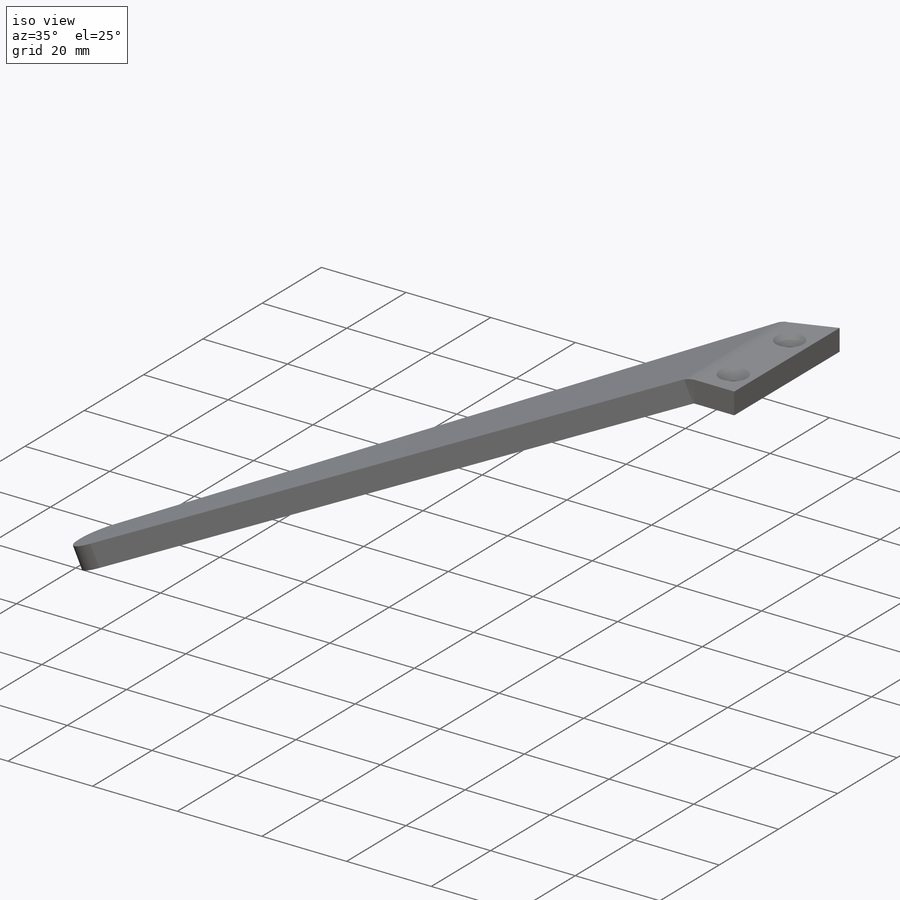
[diagram: iso view]
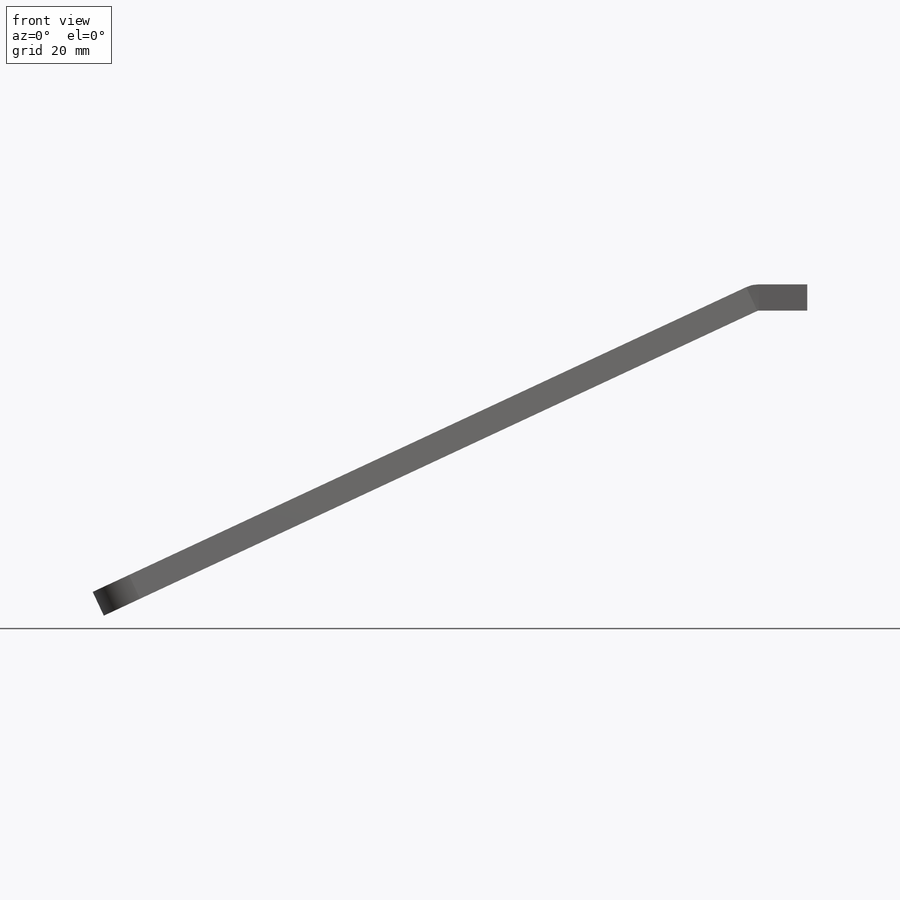
[diagram: front view]
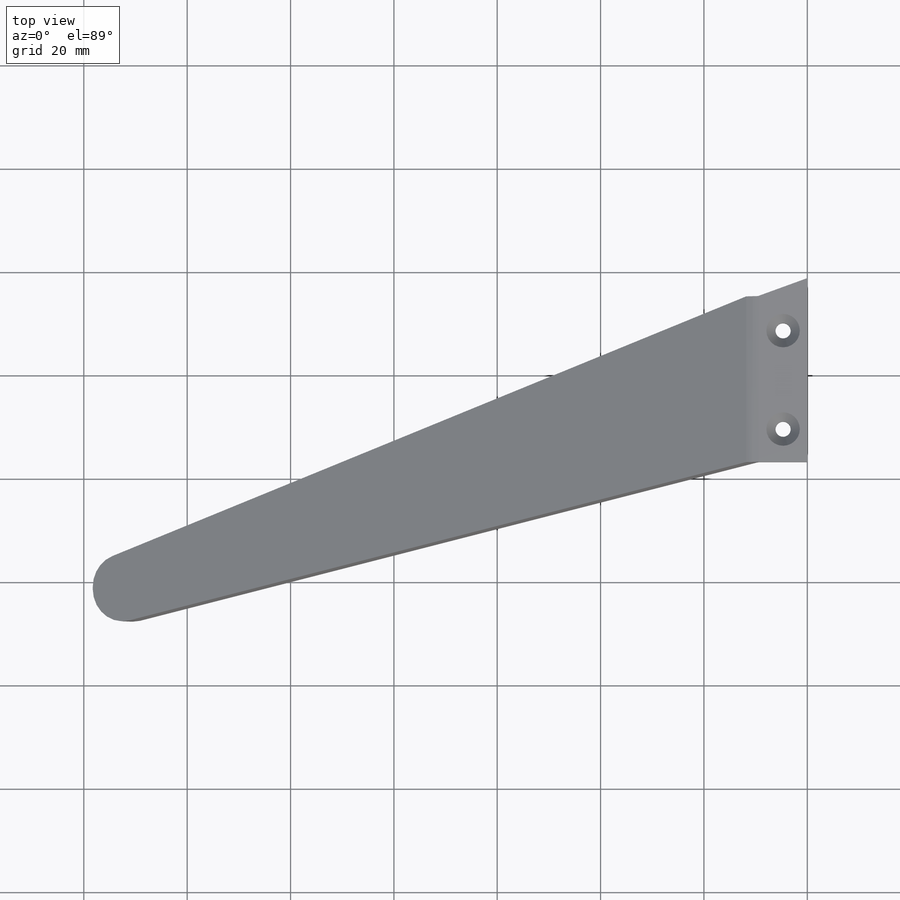
[diagram: top view]
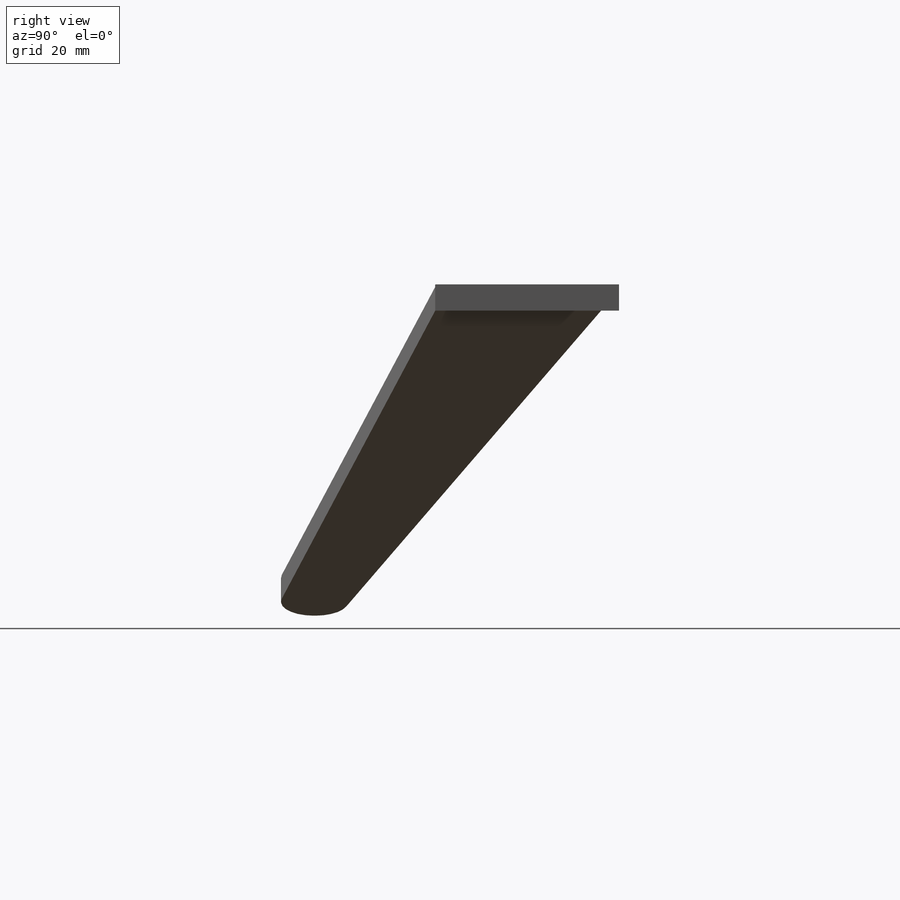
[diagram: right view]
SOLIDWORKS PART (.sldprt)
format: sldprt  version: not decoded by parser v0  size: 315,392 bytes
history: native  units: mm
features: sketch x13, hole x3, sheet_metal_op x2, fillet x2, material x1, cut_extrude x1 + 1 further entry (+12 scaffold rows collapsed; 1 parser-record rows omitted)
feature tree (36):
  scaffold x12  (default folders/planes/origin — collapsed)
  material  "Delrin 2700 NC010, Low Viscosity Acetal Copolymer (SS)"
  sketch  "Sketch2"  dims[c1.D1=35.56mm c1.D2=12.7mm c1.D3=12.7mm c2.D3=~14.054579deg c3.D3=~349.06585mm c3.D4=12.7mm c3.D2=9.525mm c4.D3=~349.06585mm c4.D4=~2387.261351mm c4.D5=38.1mm c4.D1=0.7366mm c4.D2=0.5 c5.D3=0.0deg c5.D6=~28.64789deg]
  sheet_metal_op  "Base-Flange1"
  sketch  "Sketch10"  dims[c1.D1=114.3mm c1.D2=12.7mm c2.D1=12.7mm c2.D2=~349.06585mm c2.D3=139.7mm c3.D2=~349.06585mm c3.D1=0.7366mm c3.D4=~436.332313mm c3.D5=1.0 c3.D8=~0.145531deg c3.D9=~0.145531deg c4.D1=0.7366mm c4.D2=~28.64789deg c4.D3=0.0deg c4.D6=10.0mm c4.D7=139.7mm]
  hole  "CSK for #4 Flat Head Socket Cap Screw1"  Diameter=2.9464mm Depth=64.119771mm
  sketch  "Sketch13"  dims[c1.D1=25.4mm c1.D2=6.35mm c2.D1=6.35mm c2.D3=19.05mm c2.D2=38.1mm c2.D4=~2530.727415mm]
  sketch  "Sketch12"  dims[hole-wizard template sketch: 40 standard entries collapsed; hole parameters kept: c6.Thru Hole Dia.=2.9464mm c6.Thru Hole Depth=~64.119771mm c6.Near C'Sink Dia.=6.477mm c6.Near C'Sink Angle=~1431.169987mm]  [1 undecoded]
  fillet  "Fillet1"  Radius=6.35mm
  sketch  "Bend-Lines1"
  sketch  "Bounding-Box1"
  sketch  "Sketch14"  dims[D1=~1.087554mm]
  cut_extrude  "Cut-Extrude1"  Depth=0.0508mm
  sheet_metal_op  "Sheet-Metal(4)"
  "Flat-Pattern(4)"
  sketch  "Bend-Lines2"
  sketch  "Bounding-Box2"
  parser-record x1  (decoder bookkeeping rows leaked as tree rows — omitted from the tree; the rows remain in map.json)
  sketch  "Bend-Lines2"
  sketch  "Bounding-Box2"
  hole  "Sketch Transformation1"  Diameter=0 Sheet-Metal(7)=0
  sketch  "Bend-Lines2"
  sketch  "Bounding-Box2"
  fillet  "Flatten-<EdgeBend1>1"  [1 undecoded]
  hole  "Sketch Transformation1"  [1 undecoded]
decode coverage: 9 of 21 modeling features carry decoded parameters; 1 rows unclassified (native names shown)
note: ~ marks probable driven/reference dimensions
note: 2 parameter values undecoded
note: suppression state not decoded; provenance and decode notes live in map.json
note: 1 required parameter value undecoded (feature->parameter linkage not recoverable at this tier; creation-order binding heuristic only, values carry confidence <= 0.55)
